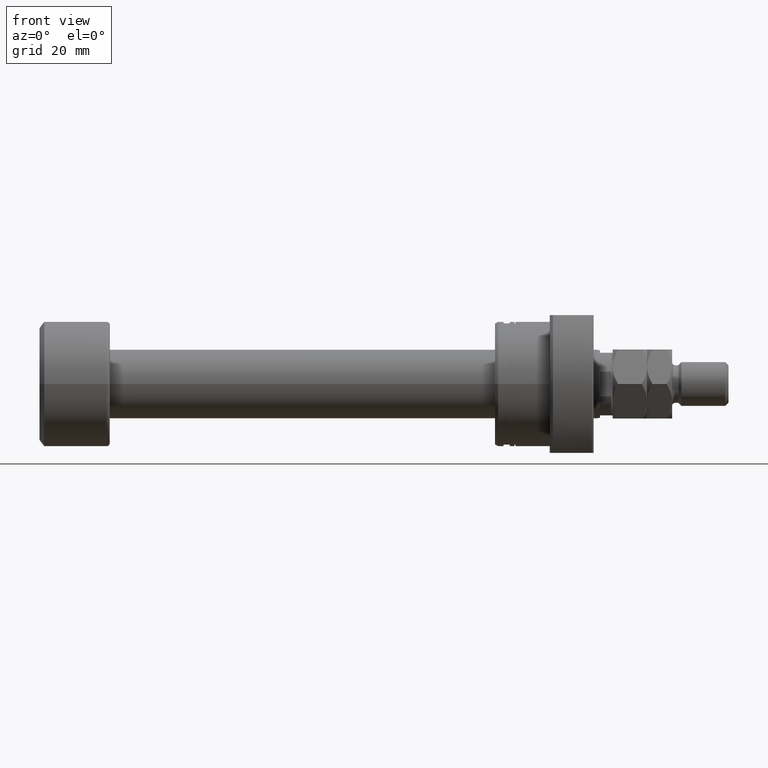
[diagram: clean part render]
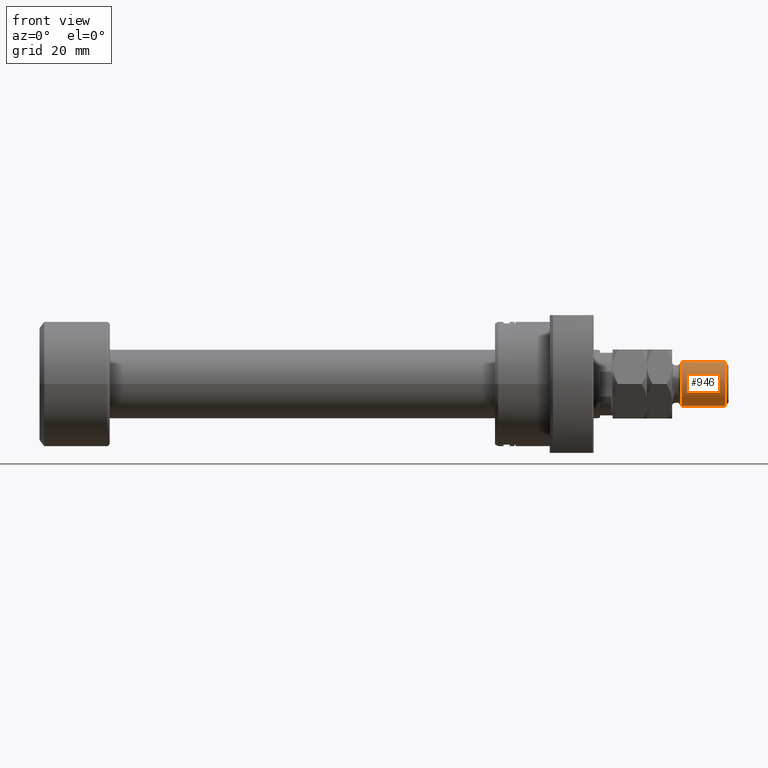
[diagram: same view with one face highlighted and labeled with its STEP entity id]
A machine part, front view. The second image highlights one B-rep face of the part: STEP entity #946.
In plain terms, the highlighted cylindrical surface (edge-blend (fillet) strip) has radius 7 mm, axis along (-1, -0, 0).
Its self-contained STEP definition (entity closure, byte-faithful):
#42 = ORIENTED_EDGE ( 'NONE', *, *, #1665, .T. ) ;
#65 = VERTEX_POINT ( 'NONE', #4348 ) ;
#90 = AXIS2_PLACEMENT_3D ( 'NONE', #531, #4250, #162 ) ;
#162 = DIRECTION ( 'NONE',  ( -1.000000000000000000, 0.000000000000000000, 0.000000000000000000 ) ) ;
#232 = CARTESIAN_POINT ( 'NONE',  ( -7.000000000000000000, 0.000000000000000000, 22.00000000000000355 ) ) ;
#421 = VECTOR ( 'NONE', #3929, 1000.000000000000000 ) ;
#477 = CARTESIAN_POINT ( 'NONE',  ( 0.000000000000000000, 0.000000000000000000, 35.99999999999999289 ) ) ;
#531 = CARTESIAN_POINT ( 'NONE',  ( 0.000000000000000000, 0.000000000000000000, 37.00000000000000000 ) ) ;
#697 = LINE ( 'NONE', #2928, #2531 ) ;
#762 = VERTEX_POINT ( 'NONE', #4408 ) ;
#824 = DIRECTION ( 'NONE',  ( 0.000000000000000000, 0.000000000000000000, -1.000000000000000000 ) ) ;
#901 = FACE_OUTER_BOUND ( 'NONE', #3004, .T. ) ;
#946 = ADVANCED_FACE ( 'NONE', ( #901 ), #2376, .T. ) ;
#1003 = DIRECTION ( 'NONE',  ( 1.000000000000000000, 0.000000000000000000, 0.000000000000000000 ) ) ;
#1116 = DIRECTION ( 'NONE',  ( -0.000000000000000000, -0.000000000000000000, -1.000000000000000000 ) ) ;
#1212 = DIRECTION ( 'NONE',  ( 1.000000000000000000, 0.000000000000000000, 0.000000000000000000 ) ) ;
#1557 = ORIENTED_EDGE ( 'NONE', *, *, #3542, .T. ) ;
#1657 = ORIENTED_EDGE ( 'NONE', *, *, #4677, .T. ) ;
#1665 = EDGE_CURVE ( 'NONE', #2071, #65, #3508, .T. ) ;
#1686 = CARTESIAN_POINT ( 'NONE',  ( 0.000000000000000000, 0.000000000000000000, 22.00000000000000355 ) ) ;
#1927 = VERTEX_POINT ( 'NONE', #2415 ) ;
#2060 = CIRCLE ( 'NONE', #3365, 7.000000000000000000 ) ;
#2071 = VERTEX_POINT ( 'NONE', #232 ) ;
#2376 = CYLINDRICAL_SURFACE ( 'NONE', #90, 7.000000000000000000 ) ;
#2415 = CARTESIAN_POINT ( 'NONE',  ( 7.000000000000000000, 8.572527594031473190E-16, 35.99999999999999289 ) ) ;
#2531 = VECTOR ( 'NONE', #1116, 1000.000000000000000 ) ;
#2794 = CARTESIAN_POINT ( 'NONE',  ( 7.000000000000000000, 8.572527594031473190E-16, 37.00000000000000000 ) ) ;
#2805 = AXIS2_PLACEMENT_3D ( 'NONE', #1686, #3503, #1003 ) ;
#2928 = CARTESIAN_POINT ( 'NONE',  ( -7.000000000000000000, 0.000000000000000000, 37.00000000000000000 ) ) ;
#3004 = EDGE_LOOP ( 'NONE', ( #3025, #1557, #1657, #42 ) ) ;
#3025 = ORIENTED_EDGE ( 'NONE', *, *, #4097, .F. ) ;
#3213 = LINE ( 'NONE', #2794, #421 ) ;
#3365 = AXIS2_PLACEMENT_3D ( 'NONE', #477, #824, #1212 ) ;
#3503 = DIRECTION ( 'NONE',  ( -0.000000000000000000, -0.000000000000000000, 1.000000000000000000 ) ) ;
#3508 = CIRCLE ( 'NONE', #2805, 7.000000000000000000 ) ;
#3542 = EDGE_CURVE ( 'NONE', #1927, #762, #2060, .T. ) ;
#3929 = DIRECTION ( 'NONE',  ( -0.000000000000000000, -0.000000000000000000, -1.000000000000000000 ) ) ;
#4097 = EDGE_CURVE ( 'NONE', #1927, #65, #3213, .T. ) ;
#4250 = DIRECTION ( 'NONE',  ( -0.000000000000000000, -0.000000000000000000, -1.000000000000000000 ) ) ;
#4348 = CARTESIAN_POINT ( 'NONE',  ( 7.000000000000000000, 8.572527594031473190E-16, 22.00000000000000355 ) ) ;
#4408 = CARTESIAN_POINT ( 'NONE',  ( -7.000000000000000000, 0.000000000000000000, 35.99999999999999289 ) ) ;
#4677 = EDGE_CURVE ( 'NONE', #762, #2071, #697, .T. ) ;